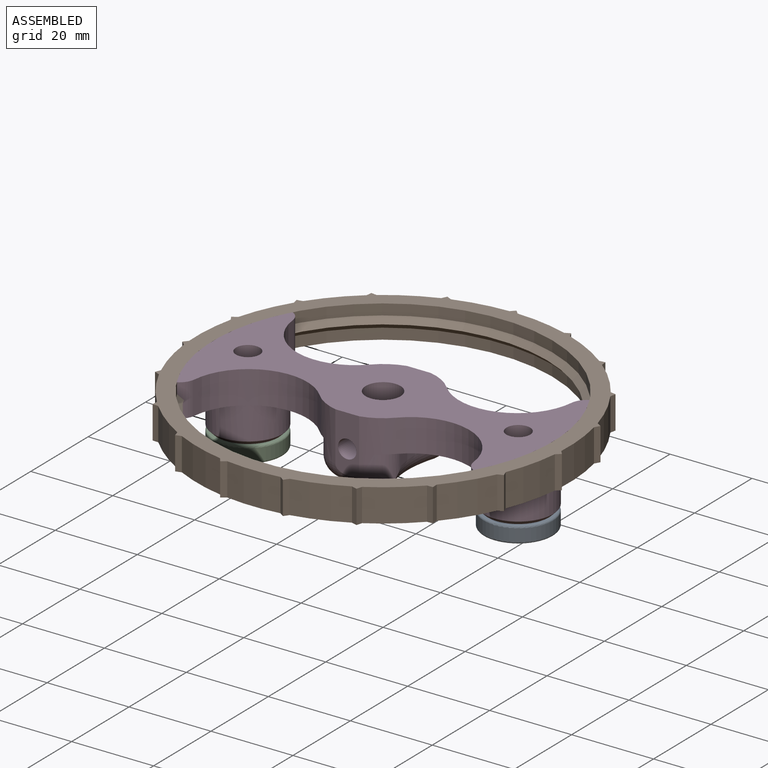
[diagram: assembled view]
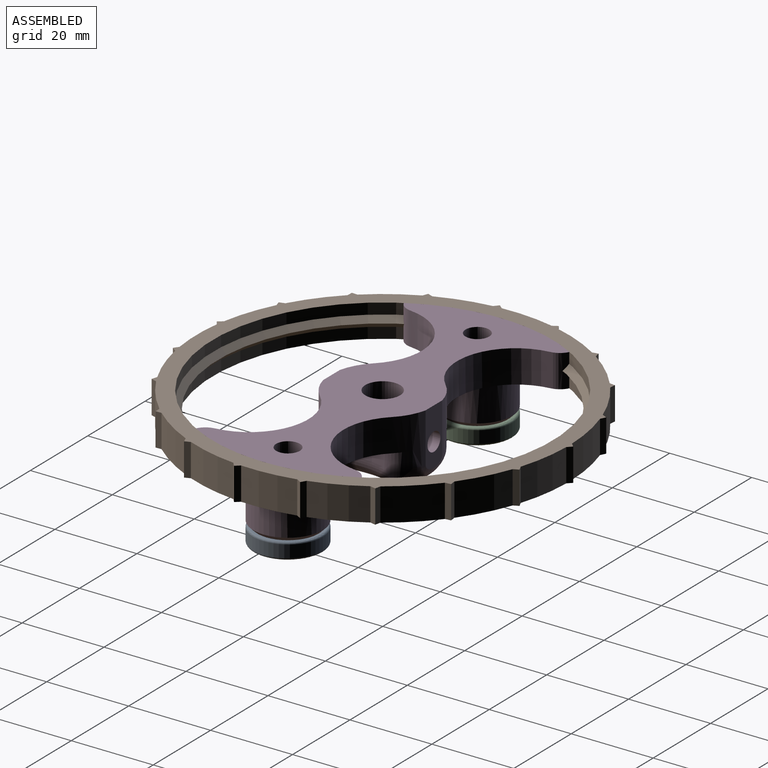
[diagram: assembled view, second angle]
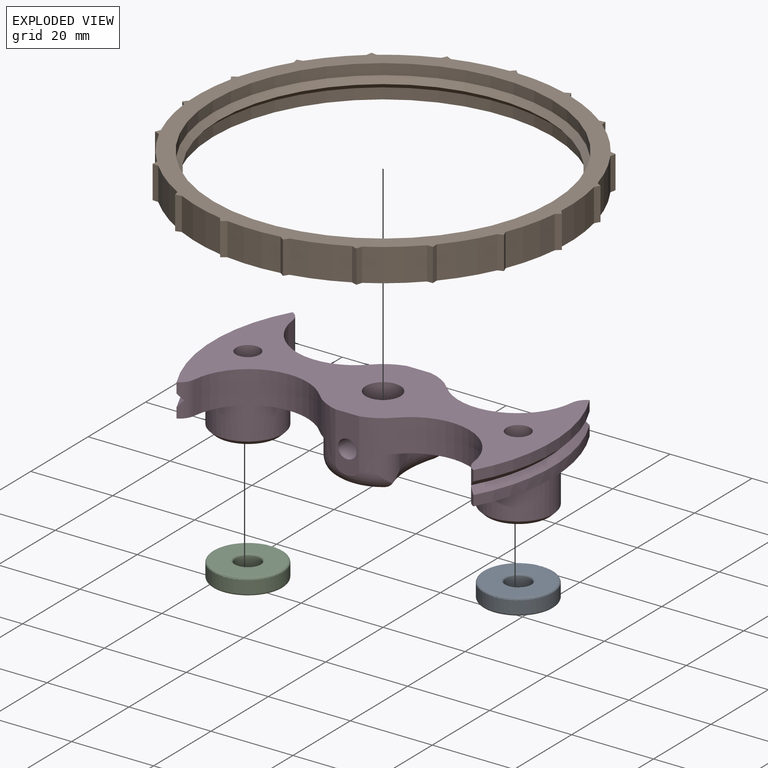
[diagram: exploded view]
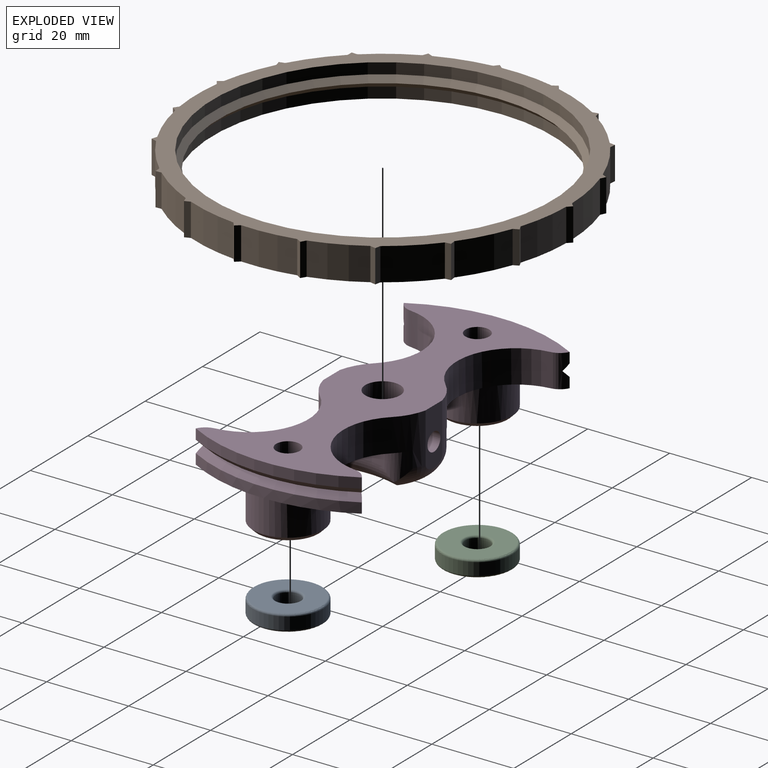
[diagram: exploded view, second angle]
ASSEMBLY  parts=4 mates=3
PART A: 8 faces, bbox 18.4x18.4x4 mm
  f0: cylinder r=3mm len=6mm, axis (0,0,-1), area 56.5mm2, adj f4,f6
  f1: cylinder r=8.5mm len=17mm, axis (0,0,-1), area 160.2mm2, adj f5,f7
  f2: plane 16x16mm, normal (0,0,1), area 162.6mm2, adj f6,f7
  f3: plane 16x16mm, normal (0,0,-1), area 162.6mm2, adj f4,f5
  f4: torus R=3.5mm, axis (0,0,1), area 15.7mm2, adj f0,f3
  f5: torus R=8mm, axis (0,0,1), area 41mm2, adj f1,f3
  f6: torus R=3.5mm, axis (0,0,1), area 15.7mm2, adj f0,f2
  f7: torus R=8mm, axis (0,0,1), area 41mm2, adj f1,f2
PART B: 63 faces, bbox 92.7x92.3x8 mm
  f0: cylinder r=41.5mm len=83mm, axis (0,0,-1), area 691mm2, adj f60,f61
  f1: plane 8x1.22mm, normal (0.51,0.86,0), area 11.3mm2, adj f2,f57,f59,f60
  f2: cylinder r=45.5mm len=11.91mm, axis (0,0,-1), area 104.4mm2, adj f1,f3,f59,f60
  f3: plane 8x1.38mm, normal (0.98,-0.21,0), area 11.3mm2, adj f2,f4,f59,f60
  f4: plane 8x1.38mm, normal (0.21,0.98,0), area 11.3mm2, adj f3,f5,f59,f60
  f5: cylinder r=45.5mm len=9.57mm, axis (0,0,-1), area 104.4mm2, adj f4,f6,f59,f60
  f6: plane 8x1.4mm, normal (0.99,0.12,0), area 11.3mm2, adj f5,f7,f59,f60
  f7: plane 8x1.4mm, normal (-0.12,0.99,0), area 11.3mm2, adj f6,f8,f59,f60
  f8: cylinder r=45.5mm len=11.43mm, axis (0,0,-1), area 104.4mm2, adj f7,f9,f59,f60
  f9: plane 8x1.27mm, normal (0.9,0.44,0), area 11.3mm2, adj f8,f10,f59,f60
  f10: plane 8x1.27mm, normal (-0.44,0.9,0), area 11.3mm2, adj f9,f11,f59,f60
  f11: cylinder r=45.5mm len=12.82mm, axis (0,0,-1), area 104.4mm2, adj f10,f12,f59,f60
  f12: plane 8x1mm, normal (0.71,0.71,0), area 11.3mm2, adj f11,f13,f59,f60
  f13: plane 8x1mm, normal (-0.71,0.71,0), area 11.3mm2, adj f12,f14,f59,f60
  f14: cylinder r=45.5mm len=12.82mm, axis (0,0,-1), area 104.4mm2, adj f13,f15,f59,f60
  f15: plane 8x1.27mm, normal (0.44,0.9,0), area 11.3mm2, adj f14,f16,f59,f60
  f16: plane 8x1.27mm, normal (-0.9,0.44,0), area 11.3mm2, adj f15,f17,f59,f60
  f17: cylinder r=45.5mm len=11.43mm, axis (0,0,-1), area 104.4mm2, adj f16,f18,f59,f60
  f18: plane 8x1.4mm, normal (0.12,0.99,0), area 11.3mm2, adj f17,f19,f59,f60
  f19: plane 8x1.4mm, normal (-0.99,0.12,0), area 11.3mm2, adj f18,f20,f59,f60
  f20: cylinder r=45.5mm len=9.57mm, axis (0,0,-1), area 104.4mm2, adj f19,f21,f59,f60
  f21: plane 8x1.38mm, normal (-0.21,0.98,0), area 11.3mm2, adj f20,f22,f59,f60
  f22: plane 8x1.38mm, normal (-0.98,-0.21,0), area 11.3mm2, adj f21,f23,f59,f60
  f23: cylinder r=45.5mm len=11.91mm, axis (0,0,-1), area 104.4mm2, adj f22,f24,f59,f60
  f24: plane 8x1.22mm, normal (-0.51,0.86,0), area 11.3mm2, adj f23,f25,f59,f60
  f25: plane 8x1.22mm, normal (-0.86,-0.51,0), area 11.3mm2, adj f24,f26,f59,f60
  f26: cylinder r=45.5mm len=12.96mm, axis (0,0,-1), area 104.4mm2, adj f25,f27,f59,f60
  f27: plane 8x1.08mm, normal (-0.76,0.65,0), area 11.3mm2, adj f26,f28,f59,f60
  f28: plane 8x1.08mm, normal (-0.65,-0.76,0), area 11.3mm2, adj f27,f29,f59,f60
  f29: cylinder r=45.5mm len=12.6mm, axis (0,0,-1), area 104.4mm2, adj f28,f30,f59,f60
  f30: plane 8x1.32mm, normal (-0.93,0.36,0), area 11.3mm2, adj f29,f31,f59,f60
  f31: plane 8x1.32mm, normal (-0.36,-0.93,0), area 11.3mm2, adj f30,f32,f59,f60
  f32: cylinder r=45.5mm len=10.88mm, axis (0,0,-1), area 104.4mm2, adj f31,f33,f59,f60
  f33: plane 8x1.41mm, normal (-1,0.04,0), area 11.3mm2, adj f32,f34,f59,f60
  f34: plane 8x1.41mm, normal (-0.04,-1,0), area 11.3mm2, adj f33,f35,f59,f60
  f35: cylinder r=45.5mm len=10.26mm, axis (0,0,-1), area 104.4mm2, adj f34,f36,f59,f60
  f36: plane 8x1.36mm, normal (-0.96,-0.29,0), area 11.3mm2, adj f35,f37,f59,f60
  f37: plane 8x1.36mm, normal (0.29,-0.96,0), area 11.3mm2, adj f36,f38,f59,f60
  f38: cylinder r=45.5mm len=12.3mm, axis (0,0,-1), area 104.4mm2, adj f37,f39,f59,f60
  f39: plane 8x1.15mm, normal (-0.81,-0.58,0), area 11.3mm2, adj f38,f40,f59,f60
  f40: plane 8x1.15mm, normal (0.58,-0.81,0), area 11.3mm2, adj f39,f41,f59,f60
  f41: cylinder r=45.5mm len=13mm, axis (0,0,-1), area 104.4mm2, adj f40,f42,f59,f60
  f42: plane 8x1.15mm, normal (-0.58,-0.81,0), area 11.3mm2, adj f41,f43,f59,f60
  f43: plane 8x1.15mm, normal (0.81,-0.58,0), area 11.3mm2, adj f42,f44,f59,f60
  f44: cylinder r=45.5mm len=12.3mm, axis (0,0,-1), area 104.4mm2, adj f43,f45,f59,f60
  f45: plane 8x1.36mm, normal (-0.29,-0.96,0), area 11.3mm2, adj f44,f46,f59,f60
  f46: plane 8x1.36mm, normal (0.96,-0.29,0), area 11.3mm2, adj f45,f47,f59,f60
  f47: cylinder r=45.5mm len=10.26mm, axis (0,0,-1), area 104.4mm2, adj f46,f48,f59,f60
  f48: plane 8x1.41mm, normal (0.04,-1,0), area 11.3mm2, adj f47,f49,f59,f60
  f49: plane 8x1.41mm, normal (1,0.04,0), area 11.3mm2, adj f48,f50,f59,f60
  f50: cylinder r=45.5mm len=10.88mm, axis (0,0,-1), area 104.4mm2, adj f49,f51,f59,f60
  f51: plane 8x1.32mm, normal (0.36,-0.93,0), area 11.3mm2, adj f50,f52,f59,f60
  f52: plane 8x1.32mm, normal (0.93,0.36,0), area 11.3mm2, adj f51,f53,f59,f60
  f53: cylinder r=45.5mm len=12.6mm, axis (0,0,-1), area 104.4mm2, adj f52,f54,f59,f60
  f54: plane 8x1.08mm, normal (0.65,-0.76,0), area 11.3mm2, adj f53,f55,f59,f60
  f55: plane 8x1.08mm, normal (0.76,0.65,0), area 11.3mm2, adj f54,f56,f59,f60
  f56: cylinder r=45.5mm len=12.96mm, axis (0,0,-1), area 104.4mm2, adj f55,f57,f59,f60
  f57: plane 8x1.22mm, normal (0.86,-0.51,0), area 11.3mm2, adj f1,f56,f59,f60
  f58: cylinder r=41.5mm len=83mm, axis (0,0,-1), area 691mm2, adj f59,f62
  f59: plane 92.66x92.34mm, normal (0,0,1), area 1112mm2, adj f1,f2,f3,f4,f5,f6,f7,f8
  f60: plane 92.66x92.34mm, normal (0,0,-1), area 1112mm2, adj f0,f1,f2,f3,f4,f5,f6,f7
  f61: cone r=40.15mm half-angle=45deg, axis (0,0,-1), area 489.7mm2, adj f0,f62
  f62: cone r=41.5mm half-angle=45deg, axis (0,0,1), area 489.7mm2, adj f58,f61
PART C: same geometry as A
PART D: 56 faces, bbox 83x40.5x17 mm
  f0: plane 7.15x4.74mm, normal (0,0,1), area 24.4mm2, adj f23,f48,f51,f53
  f1: cylinder r=4mm len=8mm, axis (0,0,-1), area 29.8mm2, adj f2,f10,f12,f13,f28,f40,f41
  f2: cylinder r=41.5mm len=40.48mm, axis (0,0,-1), area 105.7mm2, adj f1,f3,f28,f41
  f3: cylinder r=4mm len=8mm, axis (0,0,-1), area 29.8mm2, adj f2,f9,f13,f14,f28,f40,f41
  f4: cylinder r=4mm len=8mm, axis (0,0,-1), area 29.8mm2, adj f5,f11,f18,f19,f28,f38,f39
  f5: cylinder r=41.5mm len=40.48mm, axis (0,0,-1), area 105.7mm2, adj f4,f6,f28,f38
  f6: cylinder r=4mm len=8mm, axis (0,0,-1), area 29.8mm2, adj f5,f19,f20,f27,f28,f38,f39
  f7: plane 22.83x22.22mm, normal (0,0,1), area 192.3mm2, adj f12,f14,f15,f24,f31,f33,f46,f49
  f8: plane 22.83x22.22mm, normal (0,0,1), area 192.3mm2, adj f17,f18,f20,f21,f29,f34,f50,f55
  f9: plane 20.24x13.42mm, normal (0,0,1), area 79.7mm2, adj f3,f13,f14,f31
  f10: plane 20.24x13.42mm, normal (0,0,1), area 79.7mm2, adj f1,f12,f13,f31
  f11: plane 20.24x13.42mm, normal (0,0,1), area 79.7mm2, adj f4,f18,f19,f29
  f12: cylinder r=14.33mm len=24.69mm, axis (0,0,-1), area 261.4mm2, adj f1,f7,f10,f24,f28
  f13: cylinder r=41.5mm len=40.48mm, axis (0,0,-1), area 105.7mm2, adj f1,f3,f9,f10,f40
  f14: cylinder r=14.33mm len=24.69mm, axis (0,0,-1), area 261.4mm2, adj f3,f7,f9,f15,f28
  f15: cylinder r=12.83mm len=12mm, axis (0,0,-1), area 73mm2, adj f7,f14,f16,f28,f46,f51
  f16: plane 13.79x5.8mm, normal (0,-1,0), area 61.9mm2, adj f15,f17,f28,f36,f51
  f17: cylinder r=12.83mm len=12mm, axis (0,0,-1), area 73mm2, adj f8,f16,f18,f28,f50,f51
  f18: cylinder r=14.33mm len=24.69mm, axis (0,0,-1), area 261.4mm2, adj f4,f8,f11,f17,f28
  f19: cylinder r=41.5mm len=40.48mm, axis (0,0,-1), area 105.7mm2, adj f4,f6,f11,f27,f39
  f20: cylinder r=14.33mm len=24.69mm, axis (0,0,-1), area 261.4mm2, adj f6,f8,f21,f27,f28
  f21: cylinder r=12.83mm len=12mm, axis (0,0,-1), area 73mm2, adj f8,f20,f22,f28,f54,f55
  f22: plane 13.79x5.8mm, normal (0,1,0), area 61.9mm2, adj f21,f24,f28,f37,f54
  f23: cylinder r=4.25mm len=17mm, axis (0,0,-1), area 419.2mm2, adj f0,f28,f35,f36,f37,f48,f53
  f24: cylinder r=12.83mm len=12mm, axis (0,0,-1), area 73mm2, adj f7,f12,f22,f28,f49,f54
  f25: cylinder r=2.9mm len=16mm, axis (0,0,-1), area 291.5mm2, adj f28,f44
  f26: cylinder r=2.9mm len=16mm, axis (0,0,-1), area 291.5mm2, adj f28,f42
  f27: plane 20.24x13.42mm, normal (0,0,1), area 79.7mm2, adj f6,f19,f20,f29
  f28: plane 83x40.48mm, normal (0,0,-1), area 1431.5mm2, adj f1,f2,f3,f4,f5,f6,f12,f14
  f29: cylinder r=8.5mm len=17mm, axis (0,0,-1), area 427.3mm2, adj f8,f11,f27,f43
  f30: plane 15x15mm, normal (0,0,1), area 128.9mm2, adj f42,f43
  f31: cylinder r=8.5mm len=17mm, axis (0,0,-1), area 427.3mm2, adj f7,f9,f10,f45
  f32: plane 15x15mm, normal (0,0,1), area 128.9mm2, adj f44,f45
  f33: cylinder r=25.24mm len=11.63mm, axis (0,0,-1), area 46.9mm2, adj f7,f46,f48,f49
  f34: cylinder r=25.24mm len=11.63mm, axis (0,0,-1), area 46.9mm2, adj f8,f50,f53,f55
  f35: plane 7.15x4.74mm, normal (0,0,1), area 24.4mm2, adj f23,f48,f53,f54
  f36: cylinder r=2.25mm len=8.89mm, axis (0,-1,0), area 121.1mm2, adj f16,f23
  f37: cylinder r=2.25mm len=8.89mm, axis (0,-1,0), area 121.1mm2, adj f22,f23
  f38: cone r=40mm half-angle=45deg, axis (0,0,-1), area 87.8mm2, adj f4,f5,f6,f39
  f39: cone r=41.5mm half-angle=45deg, axis (0,0,1), area 87.8mm2, adj f4,f6,f19,f38
  f40: cone r=41.5mm half-angle=45deg, axis (0,0,1), area 87.8mm2, adj f1,f3,f13,f41
  f41: cone r=40mm half-angle=45deg, axis (0,0,-1), area 87.8mm2, adj f1,f2,f3,f40
  f42: cone r=2.9mm half-angle=45deg, axis (0,0,1), area 30.2mm2, adj f26,f30
  f43: cone r=7.5mm half-angle=45deg, axis (0,0,-1), area 71.1mm2, adj f29,f30
  f44: cone r=2.9mm half-angle=45deg, axis (0,0,1), area 30.2mm2, adj f25,f32
  f45: cone r=7.5mm half-angle=45deg, axis (0,0,-1), area 71.1mm2, adj f31,f32
  f46: cylinder r=5mm len=5.6mm, axis (0,0,1), area 26.6mm2, adj f7,f15,f33,f47
  f47: sphere r=5mm, area 33.2mm2, adj f46,f48,f51
  f48: torus R=30.24mm, axis (0,0,1), area 92.4mm2, adj f0,f23,f33,f35,f47,f52
  f49: cylinder r=5mm len=5.6mm, axis (0,0,1), area 26.6mm2, adj f7,f24,f33,f52
  f50: cylinder r=5mm len=6.85mm, axis (0,0,1), area 36.1mm2, adj f8,f17,f34,f51,f53
  f51: torus R=7.83mm, axis (0,0,1), area 88.2mm2, adj f0,f15,f16,f17,f47,f50,f53
  f52: sphere r=5mm, area 33.3mm2, adj f48,f49,f54
  f53: torus R=30.24mm, axis (0,0,1), area 115mm2, adj f0,f23,f34,f35,f50,f51,f54,f55
  f54: torus R=7.83mm, axis (0,0,1), area 88.2mm2, adj f21,f22,f24,f35,f52,f53,f55
  f55: cylinder r=5mm len=6.85mm, axis (0,0,1), area 36.1mm2, adj f8,f21,f34,f53,f54
PLACE A t=(66,0,-96)mm
PLACE B t=(0,0,-58)mm
PLACE C t=(0,0,-96)mm
PLACE D rot(axis=(1,0,0),180deg) t=(0,0,0)mm
MATE fastened D.f29 <-> A.f1  axis (0,0,-1) through (33,0,-17)mm
MATE fastened B.f0 <-> D.f23  axis (0,0,1) through (0,0,0)mm
MATE fastened D.f25 <-> C.f1  axis (0,0,-1) through (-33,0,-17)mm
